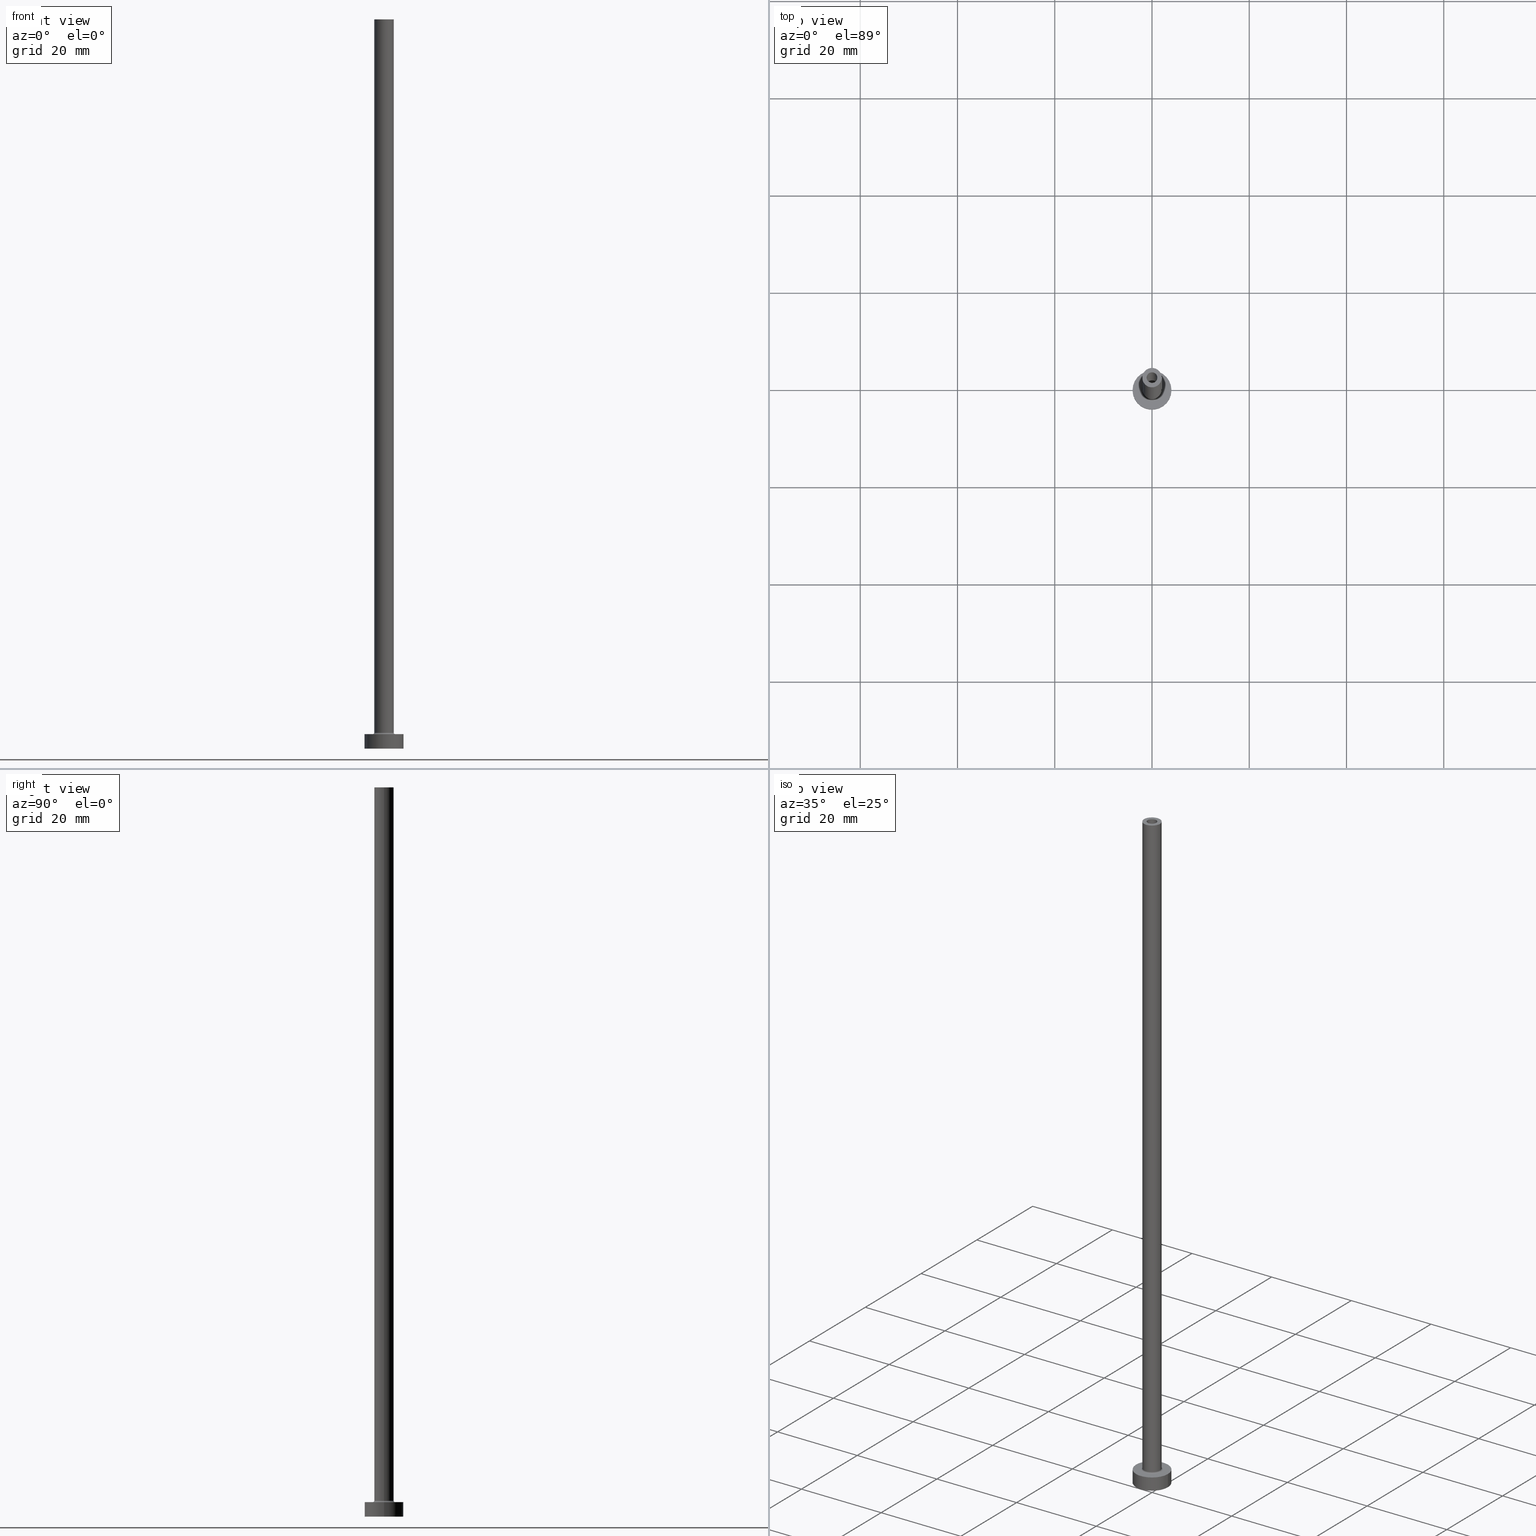
[diagram: canonical four-view strip — front | top / right | iso, engineering-drawing reading convention]
A machine part, canonical four-view strip (front | top / right | iso — engineering-drawing reading convention). The complete STEP part file that produces these views, byte-faithful:
ISO-10303-21;
HEADER;
FILE_DESCRIPTION (( 'STEP AP203' ),
    '1' );
FILE_NAME ('4239.STEP',
    '2023-02-13T12:49:41',
    ( '' ),
    ( '' ),
    'SwSTEP 2.0',
    'SolidWorks 2019',
    '' );
FILE_SCHEMA (( 'CONFIG_CONTROL_DESIGN' ));
ENDSEC;

DATA;
#1 = PLANE ( 'NONE',  #171 ) ;
#2 = DIRECTION ( 'NONE',  ( -1.000000000000000000, 0.000000000000000000, 0.000000000000000000 ) ) ;
#3 = VECTOR ( 'NONE', #306, 1000.000000000000000 ) ;
#4 = LOCAL_TIME ( 13, 49, 41.00000000000000000, #419 ) ;
#5 = FACE_OUTER_BOUND ( 'NONE', #416, .T. ) ;
#6 = DIRECTION ( 'NONE',  ( 0.000000000000000000, 0.000000000000000000, 1.000000000000000000 ) ) ;
#7 = ORIENTED_EDGE ( 'NONE', *, *, #315, .T. ) ;
#8 = EDGE_CURVE ( 'NONE', #157, #304, #250, .T. ) ;
#9 = LINE ( 'NONE', #128, #188 ) ;
#10 = CIRCLE ( 'NONE', #223, 4.000000000000000000 ) ;
#11 = FACE_OUTER_BOUND ( 'NONE', #17, .T. ) ;
#12 = ORIENTED_EDGE ( 'NONE', *, *, #8, .T. ) ;
#13 = EDGE_CURVE ( 'NONE', #157, #78, #144, .T. ) ;
#14 = DIRECTION ( 'NONE',  ( -0.000000000000000000, -0.000000000000000000, -1.000000000000000000 ) ) ;
#15 = ORIENTED_EDGE ( 'NONE', *, *, #294, .F. ) ;
#16 = DIRECTION ( 'NONE',  ( 1.000000000000000000, 0.000000000000000000, 0.000000000000000000 ) ) ;
#17 = EDGE_LOOP ( 'NONE', ( #83, #222 ) ) ;
#18 = AXIS2_PLACEMENT_3D ( 'NONE', #372, #269, #194 ) ;
#19 = ORIENTED_EDGE ( 'NONE', *, *, #116, .F. ) ;
#20 = APPROVAL_DATE_TIME ( #354, #161 ) ;
#21 = EDGE_LOOP ( 'NONE', ( #414, #167 ) ) ;
#22 = EDGE_CURVE ( 'NONE', #124, #54, #309, .T. ) ;
#23 = COORDINATED_UNIVERSAL_TIME_OFFSET ( 1, 0, .AHEAD. ) ;
#24 = FACE_OUTER_BOUND ( 'NONE', #49, .T. ) ;
#25 = CIRCLE ( 'NONE', #195, 2.000000000000000000 ) ;
#26 = DIRECTION ( 'NONE',  ( -1.000000000000000000, 1.224646799147353207E-16, 0.000000000000000000 ) ) ;
#27 = PERSON_AND_ORGANIZATION ( #457, #112 ) ;
#28 = PRODUCT_DEFINITION ( 'NEZN�M�', '', #133, #389 ) ;
#29 = CARTESIAN_POINT ( 'NONE',  ( 0.000000000000000000, 0.000000000000000000, 150.0000000000000000 ) ) ;
#30 = APPROVAL_STATUS ( 'not_yet_approved' ) ;
#31 = DIRECTION ( 'NONE',  ( 1.000000000000000000, 0.000000000000000000, 0.000000000000000000 ) ) ;
#32 = AXIS2_PLACEMENT_3D ( 'NONE', #29, #246, #131 ) ;
#33 = CYLINDRICAL_SURFACE ( 'NONE', #392, 4.000000000000000000 ) ;
#34 = LOCAL_TIME ( 13, 49, 41.00000000000000000, #282 ) ;
#35 = CARTESIAN_POINT ( 'NONE',  ( 0.000000000000000000, 0.000000000000000000, 114.9999999999999858 ) ) ;
#36 = FACE_OUTER_BOUND ( 'NONE', #337, .T. ) ;
#37 = ORIENTED_EDGE ( 'NONE', *, *, #405, .F. ) ;
#38 = FACE_OUTER_BOUND ( 'NONE', #371, .T. ) ;
#39 = AXIS2_PLACEMENT_3D ( 'NONE', #349, #213, #325 ) ;
#40 = EDGE_CURVE ( 'NONE', #198, #124, #215, .T. ) ;
#41 = CC_DESIGN_DATE_AND_TIME_ASSIGNMENT ( #134, #350, ( #302 ) ) ;
#42 = CARTESIAN_POINT ( 'NONE',  ( 1.100000000000000089, 1.347111479062088503E-16, 150.0000000000000000 ) ) ;
#43 = ORIENTED_EDGE ( 'NONE', *, *, #225, .T. ) ;
#44 = CARTESIAN_POINT ( 'NONE',  ( -4.000000000000000000, 0.000000000000000000, 3.000000000000000000 ) ) ;
#45 = DIRECTION ( 'NONE',  ( 0.000000000000000000, 0.000000000000000000, -1.000000000000000000 ) ) ;
#46 = EDGE_LOOP ( 'NONE', ( #450, #347 ) ) ;
#47 = AXIS2_PLACEMENT_3D ( 'NONE', #317, #452, #59 ) ;
#48 =( LENGTH_UNIT ( ) NAMED_UNIT ( * ) SI_UNIT ( .MILLI., .METRE. ) );
#49 = EDGE_LOOP ( 'NONE', ( #88, #345, #339, #268 ) ) ;
#50 = LINE ( 'NONE', #312, #310 ) ;
#51 = ORIENTED_EDGE ( 'NONE', *, *, #344, .T. ) ;
#52 = DIRECTION ( 'NONE',  ( 0.000000000000000000, 0.000000000000000000, -1.000000000000000000 ) ) ;
#53 = PRODUCT_DEFINITION_SHAPE ( 'NONE', 'NONE',  #28 ) ;
#54 = VERTEX_POINT ( 'NONE', #67 ) ;
#55 = CIRCLE ( 'NONE', #18, 1.250000000000000000 ) ;
#56 = PERSON_AND_ORGANIZATION_ROLE ( 'creator' ) ;
#57 = ADVANCED_FACE ( 'NONE', ( #460 ), #298, .F. ) ;
#58 = ORIENTED_EDGE ( 'NONE', *, *, #214, .F. ) ;
#59 = DIRECTION ( 'NONE',  ( 1.000000000000000000, 0.000000000000000000, 0.000000000000000000 ) ) ;
#60 = PERSON_AND_ORGANIZATION_ROLE ( 'creator' ) ;
#61 = DIRECTION ( 'NONE',  ( 0.000000000000000000, 0.000000000000000000, 1.000000000000000000 ) ) ;
#62 = PERSON_AND_ORGANIZATION ( #457, #112 ) ;
#63 = AXIS2_PLACEMENT_3D ( 'NONE', #265, #77, #327 ) ;
#64 = FACE_OUTER_BOUND ( 'NONE', #316, .T. ) ;
#65 = PRODUCT ( '4239', '4239', '', ( #102 ) ) ;
#66 = ORIENTED_EDGE ( 'NONE', *, *, #426, .T. ) ;
#67 = CARTESIAN_POINT ( 'NONE',  ( 4.000000000000000000, 4.898587196589412829E-16, 0.000000000000000000 ) ) ;
#68 = CIRCLE ( 'NONE', #251, 1.100000000000000089 ) ;
#69 = CARTESIAN_POINT ( 'NONE',  ( 0.000000000000000000, 0.000000000000000000, 118.5355339059327093 ) ) ;
#70 = ADVANCED_FACE ( 'NONE', ( #418, #422 ), #321, .F. ) ;
#71 = DIRECTION ( 'NONE',  ( 0.000000000000000000, 0.000000000000000000, 1.000000000000000000 ) ) ;
#72 = CARTESIAN_POINT ( 'NONE',  ( -1.100000000000000089, 0.000000000000000000, 114.9999999999999858 ) ) ;
#73 = EDGE_LOOP ( 'NONE', ( #200, #66, #228, #242 ) ) ;
#74 = CARTESIAN_POINT ( 'NONE',  ( 0.000000000000000000, 0.000000000000000000, 0.000000000000000000 ) ) ;
#75 = AXIS2_PLACEMENT_3D ( 'NONE', #184, #170, #359 ) ;
#76 = CIRCLE ( 'NONE', #425, 4.000000000000000000 ) ;
#77 = DIRECTION ( 'NONE',  ( 0.000000000000000000, 0.000000000000000000, 1.000000000000000000 ) ) ;
#78 = VERTEX_POINT ( 'NONE', #283 ) ;
#79 = CARTESIAN_POINT ( 'NONE',  ( -1.250000000000000000, 0.000000000000000000, 114.9999999999999858 ) ) ;
#80 = ORIENTED_EDGE ( 'NONE', *, *, #314, .F. ) ;
#81 = ADVANCED_FACE ( 'NONE', ( #64 ), #249, .F. ) ;
#82 = DIRECTION ( 'NONE',  ( 0.000000000000000000, 0.000000000000000000, -1.000000000000000000 ) ) ;
#83 = ORIENTED_EDGE ( 'NONE', *, *, #104, .T. ) ;
#84 = CLOSED_SHELL ( 'NONE', ( #358, #245, #57, #168, #453, #126, #446, #180, #91, #181, #278, #219, #70, #81 ) ) ;
#85 = AXIS2_PLACEMENT_3D ( 'NONE', #402, #6, #435 ) ;
#86 = APPROVAL_PERSON_ORGANIZATION ( #62, #161, #210 ) ;
#87 = CARTESIAN_POINT ( 'NONE',  ( 0.000000000000000000, 0.000000000000000000, 150.0000000000000000 ) ) ;
#88 = ORIENTED_EDGE ( 'NONE', *, *, #295, .F. ) ;
#89 = DIRECTION ( 'NONE',  ( -0.000000000000000000, -0.000000000000000000, -1.000000000000000000 ) ) ;
#90 = ORIENTED_EDGE ( 'NONE', *, *, #328, .F. ) ;
#91 = ADVANCED_FACE ( 'NONE', ( #355 ), #135, .T. ) ;
#92 = VERTEX_POINT ( 'NONE', #177 ) ;
#93 = VECTOR ( 'NONE', #14, 1000.000000000000000 ) ;
#94 = CARTESIAN_POINT ( 'NONE',  ( 0.000000000000000000, 0.000000000000000000, 150.0000000000000000 ) ) ;
#95 = SHAPE_DEFINITION_REPRESENTATION ( #53, #207 ) ;
#96 = DIRECTION ( 'NONE',  ( -0.000000000000000000, -0.000000000000000000, -1.000000000000000000 ) ) ;
#97 = DIRECTION ( 'NONE',  ( 0.000000000000000000, 0.000000000000000000, 1.000000000000000000 ) ) ;
#98 = CARTESIAN_POINT ( 'NONE',  ( 0.000000000000000000, 0.000000000000000000, 3.299999999999997158 ) ) ;
#99 = CALENDAR_DATE ( 2023, 13, 2 ) ;
#100 = CIRCLE ( 'NONE', #318, 2.299999999999999822 ) ;
#101 = EDGE_LOOP ( 'NONE', ( #43, #365, #377, #129 ) ) ;
#102 = MECHANICAL_CONTEXT ( 'NONE', #287, 'mechanical' ) ;
#103 = DIRECTION ( 'NONE',  ( 0.000000000000000000, 0.000000000000000000, 1.000000000000000000 ) ) ;
#104 = EDGE_CURVE ( 'NONE', #198, #201, #182, .T. ) ;
#105 = CYLINDRICAL_SURFACE ( 'NONE', #335, 1.250000000000000000 ) ;
#106 = CIRCLE ( 'NONE', #438, 1.250000000000000000 ) ;
#107 = DIRECTION ( 'NONE',  ( 0.000000000000000000, 0.000000000000000000, -1.000000000000000000 ) ) ;
#108 = PLANE ( 'NONE',  #85 ) ;
#109 = DIRECTION ( 'NONE',  ( 1.000000000000000000, 0.000000000000000000, 0.000000000000000000 ) ) ;
#110 = CARTESIAN_POINT ( 'NONE',  ( 0.000000000000000000, 0.000000000000000000, 3.000000000000000000 ) ) ;
#111 = AXIS2_PLACEMENT_3D ( 'NONE', #94, #391, #454 ) ;
#112 = ORGANIZATION ( 'NEUR�EN�', 'NEUR�EN�', '' ) ;
#113 = CC_DESIGN_APPROVAL ( #252, ( #28 ) ) ;
#114 = CARTESIAN_POINT ( 'NONE',  ( -2.000000000000000000, 0.000000000000000000, 150.0000000000000000 ) ) ;
#115 = ORIENTED_EDGE ( 'NONE', *, *, #13, .T. ) ;
#116 = EDGE_CURVE ( 'NONE', #201, #198, #10, .T. ) ;
#117 = DIRECTION ( 'NONE',  ( 1.000000000000000000, 0.000000000000000000, -0.000000000000000000 ) ) ;
#118 = ORIENTED_EDGE ( 'NONE', *, *, #127, .F. ) ;
#119 = DIRECTION ( 'NONE',  ( 0.000000000000000000, 0.000000000000000000, 1.000000000000000000 ) ) ;
#120 = ORIENTED_EDGE ( 'NONE', *, *, #125, .T. ) ;
#121 = AXIS2_PLACEMENT_3D ( 'NONE', #357, #458, #26 ) ;
#122 = AXIS2_PLACEMENT_3D ( 'NONE', #149, #107, #399 ) ;
#123 = CARTESIAN_POINT ( 'NONE',  ( 0.000000000000000000, 0.000000000000000000, 3.000000000000000000 ) ) ;
#124 = VERTEX_POINT ( 'NONE', #280 ) ;
#125 = EDGE_CURVE ( 'NONE', #187, #332, #382, .T. ) ;
#126 = ADVANCED_FACE ( 'NONE', ( #24 ), #33, .T. ) ;
#127 = EDGE_CURVE ( 'NONE', #190, #341, #25, .T. ) ;
#128 = CARTESIAN_POINT ( 'NONE',  ( -1.250000000000000000, 0.000000000000000000, 118.5355339059327093 ) ) ;
#129 = ORIENTED_EDGE ( 'NONE', *, *, #395, .F. ) ;
#130 = APPROVAL_DATE_TIME ( #139, #235 ) ;
#131 = DIRECTION ( 'NONE',  ( -1.000000000000000000, 0.000000000000000000, 0.000000000000000000 ) ) ;
#132 = AXIS2_PLACEMENT_3D ( 'NONE', #148, #146, #109 ) ;
#133 = PRODUCT_DEFINITION_FORMATION_WITH_SPECIFIED_SOURCE ( 'LIBOVOLN�', '', #65, .NOT_KNOWN. ) ;
#134 = DATE_AND_TIME ( #451, #367 ) ;
#135 = CYLINDRICAL_SURFACE ( 'NONE', #32, 2.000000000000000000 ) ;
#136 = DIRECTION ( 'NONE',  ( 1.000000000000000000, 0.000000000000000000, -0.000000000000000000 ) ) ;
#137 = CARTESIAN_POINT ( 'NONE',  ( 0.000000000000000000, 0.000000000000000000, 114.9999999999999858 ) ) ;
#138 = AXIS2_PLACEMENT_3D ( 'NONE', #98, #179, #175 ) ;
#139 = DATE_AND_TIME ( #459, #4 ) ;
#140 = CARTESIAN_POINT ( 'NONE',  ( 0.000000000000000000, 0.000000000000000000, 3.000000000000000000 ) ) ;
#141 = EDGE_CURVE ( 'NONE', #275, #304, #100, .T. ) ;
#142 = DIRECTION ( 'NONE',  ( 0.000000000000000000, 0.000000000000000000, 1.000000000000000000 ) ) ;
#143 = DIRECTION ( 'NONE',  ( -1.000000000000000000, 0.000000000000000000, 0.000000000000000000 ) ) ;
#144 = CIRCLE ( 'NONE', #47, 2.000000000000000000 ) ;
#145 = AXIS2_PLACEMENT_3D ( 'NONE', #388, #209, #331 ) ;
#146 = DIRECTION ( 'NONE',  ( 0.000000000000000000, 0.000000000000000000, 1.000000000000000000 ) ) ;
#147 = CC_DESIGN_APPROVAL ( #161, ( #133 ) ) ;
#148 = CARTESIAN_POINT ( 'NONE',  ( 0.000000000000000000, 0.000000000000000000, 150.0000000000000000 ) ) ;
#149 = CARTESIAN_POINT ( 'NONE',  ( 0.000000000000000000, 0.000000000000000000, 118.5355339059327093 ) ) ;
#150 = ORIENTED_EDGE ( 'NONE', *, *, #360, .F. ) ;
#151 = EDGE_CURVE ( 'NONE', #78, #157, #153, .T. ) ;
#152 = CARTESIAN_POINT ( 'NONE',  ( -2.299999999999999822, 2.816687638038912056E-16, 2.999999999999998668 ) ) ;
#153 = CIRCLE ( 'NONE', #145, 2.000000000000000000 ) ;
#154 = EDGE_CURVE ( 'NONE', #233, #270, #183, .T. ) ;
#155 = CC_DESIGN_PERSON_AND_ORGANIZATION_ASSIGNMENT ( #455, #60, ( #133 ) ) ;
#156 = PLANE ( 'NONE',  #403 ) ;
#157 = VERTEX_POINT ( 'NONE', #185 ) ;
#158 = DIRECTION ( 'NONE',  ( -1.000000000000000000, 0.000000000000000000, 0.000000000000000000 ) ) ;
#159 = EDGE_LOOP ( 'NONE', ( #118, #261, #351, #380 ) ) ;
#160 = CARTESIAN_POINT ( 'NONE',  ( -2.000000000000000000, 0.000000000000000000, 150.0000000000000000 ) ) ;
#161 = APPROVAL ( #348, 'NEUR�EN�' ) ;
#162 = ORIENTED_EDGE ( 'NONE', *, *, #426, .F. ) ;
#163 = CIRCLE ( 'NONE', #417, 1.250000000000000000 ) ;
#164 = DIRECTION ( 'NONE',  ( -0.000000000000000000, -0.000000000000000000, -1.000000000000000000 ) ) ;
#165 = EDGE_LOOP ( 'NONE', ( #205, #313 ) ) ;
#166 = DIRECTION ( 'NONE',  ( 1.000000000000000000, 0.000000000000000000, 0.000000000000000000 ) ) ;
#167 = ORIENTED_EDGE ( 'NONE', *, *, #294, .T. ) ;
#168 = ADVANCED_FACE ( 'NONE', ( #330 ), #288, .T. ) ;
#169 = PERSON_AND_ORGANIZATION_ROLE ( 'design_supplier' ) ;
#170 = DIRECTION ( 'NONE',  ( 0.000000000000000000, 0.000000000000000000, 1.000000000000000000 ) ) ;
#171 = AXIS2_PLACEMENT_3D ( 'NONE', #401, #71, #260 ) ;
#172 = UNCERTAINTY_MEASURE_WITH_UNIT (LENGTH_MEASURE( 1.000000000000000082E-05 ), #48, 'distance_accuracy_value', 'NONE');
#173 = EDGE_CURVE ( 'NONE', #92, #379, #163, .T. ) ;
#174 = CALENDAR_DATE ( 2023, 13, 2 ) ;
#175 = DIRECTION ( 'NONE',  ( 1.000000000000000000, 0.000000000000000000, 0.000000000000000000 ) ) ;
#176 = PERSON_AND_ORGANIZATION ( #457, #112 ) ;
#177 = CARTESIAN_POINT ( 'NONE',  ( 1.250000000000000000, 1.530808498934191571E-16, 114.9999999999999858 ) ) ;
#178 = APPROVAL_ROLE ( '' ) ;
#179 = DIRECTION ( 'NONE',  ( 0.000000000000000000, 0.000000000000000000, 1.000000000000000000 ) ) ;
#180 = ADVANCED_FACE ( 'NONE', ( #329, #36 ), #108, .F. ) ;
#181 = ADVANCED_FACE ( 'NONE', ( #262, #5 ), #1, .T. ) ;
#182 = CIRCLE ( 'NONE', #241, 4.000000000000000000 ) ;
#183 = CIRCLE ( 'NONE', #132, 1.100000000000000089 ) ;
#184 = CARTESIAN_POINT ( 'NONE',  ( 0.000000000000000000, 0.000000000000000000, 0.000000000000000000 ) ) ;
#185 = CARTESIAN_POINT ( 'NONE',  ( -2.000000000000000000, 0.000000000000000000, 3.299999999999997158 ) ) ;
#186 = DIRECTION ( 'NONE',  ( 0.000000000000000000, 0.000000000000000000, 1.000000000000000000 ) ) ;
#187 = VERTEX_POINT ( 'NONE', #72 ) ;
#188 = VECTOR ( 'NONE', #45, 1000.000000000000000 ) ;
#189 = CARTESIAN_POINT ( 'NONE',  ( 1.250000000000000000, 1.530808498934191571E-16, 0.000000000000000000 ) ) ;
#190 = VERTEX_POINT ( 'NONE', #293 ) ;
#191 = CARTESIAN_POINT ( 'NONE',  ( 2.299999999999999822, 0.000000000000000000, 2.999999999999998668 ) ) ;
#192 = FACE_OUTER_BOUND ( 'NONE', #73, .T. ) ;
#193 = EDGE_CURVE ( 'NONE', #277, #211, #106, .T. ) ;
#194 = DIRECTION ( 'NONE',  ( 1.000000000000000000, 0.000000000000000000, 0.000000000000000000 ) ) ;
#195 = AXIS2_PLACEMENT_3D ( 'NONE', #430, #103, #256 ) ;
#196 = ORIENTED_EDGE ( 'NONE', *, *, #22, .F. ) ;
#197 = DIRECTION ( 'NONE',  ( 0.000000000000000000, -1.000000000000000000, 0.000000000000000000 ) ) ;
#198 = VERTEX_POINT ( 'NONE', #44 ) ;
#199 = CARTESIAN_POINT ( 'NONE',  ( 2.000000000000000000, 2.449293598294706414E-16, 150.0000000000000000 ) ) ;
#200 = ORIENTED_EDGE ( 'NONE', *, *, #154, .T. ) ;
#201 = VERTEX_POINT ( 'NONE', #397 ) ;
#202 = AXIS2_PLACEMENT_3D ( 'NONE', #137, #61, #136 ) ;
#203 = AXIS2_PLACEMENT_3D ( 'NONE', #123, #164, #413 ) ;
#204 = PERSON_AND_ORGANIZATION_ROLE ( 'classification_officer' ) ;
#205 = ORIENTED_EDGE ( 'NONE', *, *, #225, .F. ) ;
#206 = DIRECTION ( 'NONE',  ( -0.000000000000000000, -0.000000000000000000, -1.000000000000000000 ) ) ;
#207 = ADVANCED_BREP_SHAPE_REPRESENTATION ( '4239', ( #322, #361 ), #326 ) ;
#208 = PERSON_AND_ORGANIZATION ( #457, #112 ) ;
#209 = DIRECTION ( 'NONE',  ( 0.000000000000000000, 0.000000000000000000, 1.000000000000000000 ) ) ;
#210 = APPROVAL_ROLE ( '' ) ;
#211 = VERTEX_POINT ( 'NONE', #362 ) ;
#212 = COORDINATED_UNIVERSAL_TIME_OFFSET ( 1, 0, .AHEAD. ) ;
#213 = DIRECTION ( 'NONE',  ( 0.000000000000000000, 0.000000000000000000, 1.000000000000000000 ) ) ;
#214 = EDGE_CURVE ( 'NONE', #341, #190, #216, .T. ) ;
#215 = LINE ( 'NONE', #456, #343 ) ;
#216 = CIRCLE ( 'NONE', #264, 2.000000000000000000 ) ;
#217 = LOCAL_TIME ( 13, 49, 41.00000000000000000, #346 ) ;
#218 = CARTESIAN_POINT ( 'NONE',  ( 0.000000000000000000, 0.000000000000000000, 114.9999999999999858 ) ) ;
#219 = ADVANCED_FACE ( 'NONE', ( #38 ), #105, .F. ) ;
#220 = FACE_OUTER_BOUND ( 'NONE', #101, .T. ) ;
#221 = DIRECTION ( 'NONE',  ( 1.000000000000000000, 0.000000000000000000, 0.000000000000000000 ) ) ;
#222 = ORIENTED_EDGE ( 'NONE', *, *, #116, .T. ) ;
#223 = AXIS2_PLACEMENT_3D ( 'NONE', #386, #254, #394 ) ;
#224 = DIRECTION ( 'NONE',  ( -0.000000000000000000, -0.000000000000000000, -1.000000000000000000 ) ) ;
#225 = EDGE_CURVE ( 'NONE', #379, #92, #352, .T. ) ;
#226 = PRODUCT_RELATED_PRODUCT_CATEGORY ( 'detail', '', ( #65 ) ) ;
#227 = DIRECTION ( 'NONE',  ( 0.000000000000000000, 0.000000000000000000, -1.000000000000000000 ) ) ;
#228 = ORIENTED_EDGE ( 'NONE', *, *, #125, .F. ) ;
#229 = CARTESIAN_POINT ( 'NONE',  ( 0.000000000000000000, 0.000000000000000000, 150.0000000000000000 ) ) ;
#230 = EDGE_LOOP ( 'NONE', ( #19, #237, #307, #311 ) ) ;
#231 = CYLINDRICAL_SURFACE ( 'NONE', #284, 1.100000000000000089 ) ;
#232 = AXIS2_PLACEMENT_3D ( 'NONE', #363, #186, #434 ) ;
#233 = VERTEX_POINT ( 'NONE', #368 ) ;
#234 = CC_DESIGN_SECURITY_CLASSIFICATION ( #302, ( #133 ) ) ;
#235 = APPROVAL ( #30, 'NEUR�EN�' ) ;
#236 = LINE ( 'NONE', #199, #3 ) ;
#237 = ORIENTED_EDGE ( 'NONE', *, *, #295, .T. ) ;
#238 = CARTESIAN_POINT ( 'NONE',  ( 0.000000000000000000, 0.000000000000000000, 0.000000000000000000 ) ) ;
#239 = ORIENTED_EDGE ( 'NONE', *, *, #173, .T. ) ;
#240 = CARTESIAN_POINT ( 'NONE',  ( 2.299999999999999822, 0.000000000000000000, 3.299999999999997158 ) ) ;
#241 = AXIS2_PLACEMENT_3D ( 'NONE', #324, #424, #31 ) ;
#242 = ORIENTED_EDGE ( 'NONE', *, *, #315, .F. ) ;
#243 = AXIS2_PLACEMENT_3D ( 'NONE', #240, #197, #443 ) ;
#244 = CARTESIAN_POINT ( 'NONE',  ( 0.000000000000000000, 0.000000000000000000, 0.000000000000000000 ) ) ;
#245 = ADVANCED_FACE ( 'NONE', ( #220 ), #259, .F. ) ;
#246 = DIRECTION ( 'NONE',  ( -0.000000000000000000, -0.000000000000000000, -1.000000000000000000 ) ) ;
#247 = DIRECTION ( 'NONE',  ( 1.000000000000000000, 0.000000000000000000, 0.000000000000000000 ) ) ;
#248 = PERSON_AND_ORGANIZATION ( #457, #112 ) ;
#249 = CYLINDRICAL_SURFACE ( 'NONE', #111, 1.100000000000000089 ) ;
#250 = CIRCLE ( 'NONE', #121, 0.2999999999999999334 ) ;
#251 = AXIS2_PLACEMENT_3D ( 'NONE', #229, #448, #381 ) ;
#252 = APPROVAL ( #319, 'NEUR�EN�' ) ;
#253 = DATE_TIME_ROLE ( 'creation_date' ) ;
#254 = DIRECTION ( 'NONE',  ( 0.000000000000000000, 0.000000000000000000, 1.000000000000000000 ) ) ;
#255 = PERSON_AND_ORGANIZATION_ROLE ( 'design_owner' ) ;
#256 = DIRECTION ( 'NONE',  ( 1.000000000000000000, 0.000000000000000000, 0.000000000000000000 ) ) ;
#257 = ORIENTED_EDGE ( 'NONE', *, *, #151, .F. ) ;
#258 = APPROVAL_PERSON_ORGANIZATION ( #248, #252, #387 ) ;
#259 = CYLINDRICAL_SURFACE ( 'NONE', #122, 1.250000000000000000 ) ;
#260 = DIRECTION ( 'NONE',  ( 1.000000000000000000, 0.000000000000000000, -0.000000000000000000 ) ) ;
#261 = ORIENTED_EDGE ( 'NONE', *, *, #360, .T. ) ;
#262 = FACE_BOUND ( 'NONE', #281, .T. ) ;
#263 = EDGE_CURVE ( 'NONE', #332, #187, #410, .T. ) ;
#264 = AXIS2_PLACEMENT_3D ( 'NONE', #364, #142, #221 ) ;
#265 = CARTESIAN_POINT ( 'NONE',  ( 0.000000000000000000, 0.000000000000000000, 3.299999999999997158 ) ) ;
#266 = EDGE_LOOP ( 'NONE', ( #120, #383 ) ) ;
#267 = LINE ( 'NONE', #439, #447 ) ;
#268 = ORIENTED_EDGE ( 'NONE', *, *, #22, .T. ) ;
#269 = DIRECTION ( 'NONE',  ( -0.000000000000000000, -0.000000000000000000, -1.000000000000000000 ) ) ;
#270 = VERTEX_POINT ( 'NONE', #42 ) ;
#271 = LINE ( 'NONE', #376, #398 ) ;
#272 = CIRCLE ( 'NONE', #366, 2.299999999999999822 ) ;
#273 = ORIENTED_EDGE ( 'NONE', *, *, #13, .F. ) ;
#274 = LINE ( 'NONE', #301, #299 ) ;
#275 = VERTEX_POINT ( 'NONE', #191 ) ;
#276 =( NAMED_UNIT ( * ) SI_UNIT ( $, .STERADIAN. ) SOLID_ANGLE_UNIT ( ) );
#277 = VERTEX_POINT ( 'NONE', #189 ) ;
#278 = ADVANCED_FACE ( 'NONE', ( #296 ), #290, .F. ) ;
#279 = CIRCLE ( 'NONE', #243, 0.2999999999999999334 ) ;
#280 = CARTESIAN_POINT ( 'NONE',  ( -4.000000000000000000, 0.000000000000000000, 0.000000000000000000 ) ) ;
#281 = EDGE_LOOP ( 'NONE', ( #406, #37 ) ) ;
#282 = COORDINATED_UNIVERSAL_TIME_OFFSET ( 1, 0, .AHEAD. ) ;
#283 = CARTESIAN_POINT ( 'NONE',  ( 2.000000000000000000, 2.449293598294706414E-16, 3.299999999999997158 ) ) ;
#284 = AXIS2_PLACEMENT_3D ( 'NONE', #87, #82, #158 ) ;
#285 = APPLICATION_PROTOCOL_DEFINITION ( 'international standard', 'config_control_design', 1994, #287 ) ;
#286 = DIRECTION ( 'NONE',  ( -0.000000000000000000, -0.000000000000000000, -1.000000000000000000 ) ) ;
#287 = APPLICATION_CONTEXT ( 'configuration controlled 3d designs of mechanical parts and assemblies' ) ;
#288 = CYLINDRICAL_SURFACE ( 'NONE', #300, 2.000000000000000000 ) ;
#289 = DIRECTION ( 'NONE',  ( 0.000000000000000000, 0.000000000000000000, 1.000000000000000000 ) ) ;
#290 = TOROIDAL_SURFACE ( 'NONE', #63, 2.299999999999999822, 0.2999999999999999889 ) ;
#291 = DIRECTION ( 'NONE',  ( 1.000000000000000000, 0.000000000000000000, 0.000000000000000000 ) ) ;
#292 = ORIENTED_EDGE ( 'NONE', *, *, #141, .F. ) ;
#293 = CARTESIAN_POINT ( 'NONE',  ( 2.000000000000000000, 2.449293598294706414E-16, 150.0000000000000000 ) ) ;
#294 = EDGE_CURVE ( 'NONE', #304, #275, #272, .T. ) ;
#295 = EDGE_CURVE ( 'NONE', #201, #54, #274, .T. ) ;
#296 = FACE_OUTER_BOUND ( 'NONE', #334, .T. ) ;
#297 = ORIENTED_EDGE ( 'NONE', *, *, #405, .T. ) ;
#298 = TOROIDAL_SURFACE ( 'NONE', #138, 2.299999999999999822, 0.2999999999999999889 ) ;
#299 = VECTOR ( 'NONE', #89, 1000.000000000000000 ) ;
#300 = AXIS2_PLACEMENT_3D ( 'NONE', #432, #370, #2 ) ;
#301 = CARTESIAN_POINT ( 'NONE',  ( 4.000000000000000000, 4.898587196589412829E-16, 3.000000000000000000 ) ) ;
#302 = SECURITY_CLASSIFICATION ( '', '', #393 ) ;
#303 = CARTESIAN_POINT ( 'NONE',  ( 0.000000000000000000, 0.000000000000000000, 3.000000000000000000 ) ) ;
#304 = VERTEX_POINT ( 'NONE', #152 ) ;
#305 = CC_DESIGN_PERSON_AND_ORGANIZATION_ASSIGNMENT ( #176, #169, ( #133 ) ) ;
#306 = DIRECTION ( 'NONE',  ( -0.000000000000000000, -0.000000000000000000, -1.000000000000000000 ) ) ;
#307 = ORIENTED_EDGE ( 'NONE', *, *, #428, .T. ) ;
#308 = FACE_OUTER_BOUND ( 'NONE', #230, .T. ) ;
#309 = CIRCLE ( 'NONE', #75, 4.000000000000000000 ) ;
#310 = VECTOR ( 'NONE', #378, 1000.000000000000000 ) ;
#311 = ORIENTED_EDGE ( 'NONE', *, *, #40, .F. ) ;
#312 = CARTESIAN_POINT ( 'NONE',  ( 1.100000000000000089, 1.347111479062088503E-16, 150.0000000000000000 ) ) ;
#313 = ORIENTED_EDGE ( 'NONE', *, *, #173, .F. ) ;
#314 = EDGE_CURVE ( 'NONE', #78, #275, #279, .T. ) ;
#315 = EDGE_CURVE ( 'NONE', #233, #187, #271, .T. ) ;
#316 = EDGE_LOOP ( 'NONE', ( #162, #297, #7, #373 ) ) ;
#317 = CARTESIAN_POINT ( 'NONE',  ( 0.000000000000000000, 0.000000000000000000, 3.299999999999997158 ) ) ;
#318 = AXIS2_PLACEMENT_3D ( 'NONE', #396, #96, #247 ) ;
#319 = APPROVAL_STATUS ( 'not_yet_approved' ) ;
#320 = CC_DESIGN_PERSON_AND_ORGANIZATION_ASSIGNMENT ( #323, #204, ( #302 ) ) ;
#321 = PLANE ( 'NONE',  #202 ) ;
#322 = MANIFOLD_SOLID_BREP ( 'Odebrat vysunut�m4', #84 ) ;
#323 = PERSON_AND_ORGANIZATION ( #457, #112 ) ;
#324 = CARTESIAN_POINT ( 'NONE',  ( 0.000000000000000000, 0.000000000000000000, 3.000000000000000000 ) ) ;
#325 = DIRECTION ( 'NONE',  ( 1.000000000000000000, 0.000000000000000000, 0.000000000000000000 ) ) ;
#326 =( GEOMETRIC_REPRESENTATION_CONTEXT ( 3 ) GLOBAL_UNCERTAINTY_ASSIGNED_CONTEXT ( ( #172 ) ) GLOBAL_UNIT_ASSIGNED_CONTEXT ( ( #48, #342, #276 ) ) REPRESENTATION_CONTEXT ( 'NONE', 'WORKASPACE' ) );
#327 = DIRECTION ( 'NONE',  ( 1.000000000000000000, 0.000000000000000000, 0.000000000000000000 ) ) ;
#328 = EDGE_CURVE ( 'NONE', #92, #277, #267, .T. ) ;
#329 = FACE_BOUND ( 'NONE', #46, .T. ) ;
#330 = FACE_OUTER_BOUND ( 'NONE', #159, .T. ) ;
#331 = DIRECTION ( 'NONE',  ( 1.000000000000000000, 0.000000000000000000, 0.000000000000000000 ) ) ;
#332 = VERTEX_POINT ( 'NONE', #338 ) ;
#333 = DIRECTION ( 'NONE',  ( 1.000000000000000000, 0.000000000000000000, 0.000000000000000000 ) ) ;
#334 = EDGE_LOOP ( 'NONE', ( #440, #257, #369, #15 ) ) ;
#335 = AXIS2_PLACEMENT_3D ( 'NONE', #69, #227, #143 ) ;
#336 = FACE_BOUND ( 'NONE', #21, .T. ) ;
#337 = EDGE_LOOP ( 'NONE', ( #196, #445 ) ) ;
#338 = CARTESIAN_POINT ( 'NONE',  ( 1.100000000000000089, 1.347111479062088503E-16, 114.9999999999999858 ) ) ;
#339 = ORIENTED_EDGE ( 'NONE', *, *, #40, .T. ) ;
#340 = DIRECTION ( 'NONE',  ( 1.000000000000000000, 0.000000000000000000, 0.000000000000000000 ) ) ;
#341 = VERTEX_POINT ( 'NONE', #114 ) ;
#342 =( NAMED_UNIT ( * ) PLANE_ANGLE_UNIT ( ) SI_UNIT ( $, .RADIAN. ) );
#343 = VECTOR ( 'NONE', #206, 1000.000000000000000 ) ;
#344 = EDGE_CURVE ( 'NONE', #341, #157, #407, .T. ) ;
#345 = ORIENTED_EDGE ( 'NONE', *, *, #104, .F. ) ;
#346 = COORDINATED_UNIVERSAL_TIME_OFFSET ( 1, 0, .AHEAD. ) ;
#347 = ORIENTED_EDGE ( 'NONE', *, *, #193, .F. ) ;
#348 = APPROVAL_STATUS ( 'not_yet_approved' ) ;
#349 = CARTESIAN_POINT ( 'NONE',  ( 0.000000000000000000, 0.000000000000000000, 114.9999999999999858 ) ) ;
#350 = DATE_TIME_ROLE ( 'classification_date' ) ;
#351 = ORIENTED_EDGE ( 'NONE', *, *, #151, .T. ) ;
#352 = CIRCLE ( 'NONE', #374, 1.250000000000000000 ) ;
#353 = LOCAL_TIME ( 13, 49, 41.00000000000000000, #23 ) ;
#354 = DATE_AND_TIME ( #99, #353 ) ;
#355 = FACE_OUTER_BOUND ( 'NONE', #442, .T. ) ;
#356 = PERSON_AND_ORGANIZATION ( #457, #112 ) ;
#357 = CARTESIAN_POINT ( 'NONE',  ( -2.299999999999999822, 2.816687638038912056E-16, 3.299999999999997158 ) ) ;
#358 = ADVANCED_FACE ( 'NONE', ( #192 ), #231, .F. ) ;
#359 = DIRECTION ( 'NONE',  ( 1.000000000000000000, 0.000000000000000000, 0.000000000000000000 ) ) ;
#360 = EDGE_CURVE ( 'NONE', #190, #78, #236, .T. ) ;
#361 = AXIS2_PLACEMENT_3D ( 'NONE', #244, #97, #166 ) ;
#362 = CARTESIAN_POINT ( 'NONE',  ( -1.250000000000000000, 0.000000000000000000, 0.000000000000000000 ) ) ;
#363 = CARTESIAN_POINT ( 'NONE',  ( 0.000000000000000000, 0.000000000000000000, 114.9999999999999858 ) ) ;
#364 = CARTESIAN_POINT ( 'NONE',  ( 0.000000000000000000, 0.000000000000000000, 150.0000000000000000 ) ) ;
#365 = ORIENTED_EDGE ( 'NONE', *, *, #328, .T. ) ;
#366 = AXIS2_PLACEMENT_3D ( 'NONE', #110, #461, #16 ) ;
#367 = LOCAL_TIME ( 13, 49, 41.00000000000000000, #212 ) ;
#368 = CARTESIAN_POINT ( 'NONE',  ( -1.100000000000000089, 0.000000000000000000, 150.0000000000000000 ) ) ;
#369 = ORIENTED_EDGE ( 'NONE', *, *, #314, .T. ) ;
#370 = DIRECTION ( 'NONE',  ( -0.000000000000000000, -0.000000000000000000, -1.000000000000000000 ) ) ;
#371 = EDGE_LOOP ( 'NONE', ( #90, #239, #408, #449 ) ) ;
#372 = CARTESIAN_POINT ( 'NONE',  ( 0.000000000000000000, 0.000000000000000000, 0.000000000000000000 ) ) ;
#373 = ORIENTED_EDGE ( 'NONE', *, *, #263, .F. ) ;
#374 = AXIS2_PLACEMENT_3D ( 'NONE', #35, #289, #433 ) ;
#375 = CC_DESIGN_APPROVAL ( #235, ( #302 ) ) ;
#376 = CARTESIAN_POINT ( 'NONE',  ( -1.100000000000000089, 0.000000000000000000, 150.0000000000000000 ) ) ;
#377 = ORIENTED_EDGE ( 'NONE', *, *, #193, .T. ) ;
#378 = DIRECTION ( 'NONE',  ( 0.000000000000000000, 0.000000000000000000, -1.000000000000000000 ) ) ;
#379 = VERTEX_POINT ( 'NONE', #79 ) ;
#380 = ORIENTED_EDGE ( 'NONE', *, *, #344, .F. ) ;
#381 = DIRECTION ( 'NONE',  ( 1.000000000000000000, 0.000000000000000000, 0.000000000000000000 ) ) ;
#382 = CIRCLE ( 'NONE', #39, 1.100000000000000089 ) ;
#383 = ORIENTED_EDGE ( 'NONE', *, *, #263, .T. ) ;
#384 = APPROVAL_PERSON_ORGANIZATION ( #356, #235, #178 ) ;
#385 = DATE_AND_TIME ( #174, #217 ) ;
#386 = CARTESIAN_POINT ( 'NONE',  ( 0.000000000000000000, 0.000000000000000000, 3.000000000000000000 ) ) ;
#387 = APPROVAL_ROLE ( '' ) ;
#388 = CARTESIAN_POINT ( 'NONE',  ( 0.000000000000000000, 0.000000000000000000, 3.299999999999997158 ) ) ;
#389 = DESIGN_CONTEXT ( 'detailed design', #431, 'design' ) ;
#390 = APPROVAL_DATE_TIME ( #423, #252 ) ;
#391 = DIRECTION ( 'NONE',  ( 0.000000000000000000, 0.000000000000000000, -1.000000000000000000 ) ) ;
#392 = AXIS2_PLACEMENT_3D ( 'NONE', #140, #286, #420 ) ;
#393 = SECURITY_CLASSIFICATION_LEVEL ( 'unclassified' ) ;
#394 = DIRECTION ( 'NONE',  ( 1.000000000000000000, 0.000000000000000000, 0.000000000000000000 ) ) ;
#395 = EDGE_CURVE ( 'NONE', #379, #211, #9, .T. ) ;
#396 = CARTESIAN_POINT ( 'NONE',  ( 0.000000000000000000, 0.000000000000000000, 3.000000000000000000 ) ) ;
#397 = CARTESIAN_POINT ( 'NONE',  ( 4.000000000000000000, 4.898587196589412829E-16, 3.000000000000000000 ) ) ;
#398 = VECTOR ( 'NONE', #52, 1000.000000000000000 ) ;
#399 = DIRECTION ( 'NONE',  ( -1.000000000000000000, 0.000000000000000000, 0.000000000000000000 ) ) ;
#400 = CC_DESIGN_PERSON_AND_ORGANIZATION_ASSIGNMENT ( #208, #56, ( #28 ) ) ;
#401 = CARTESIAN_POINT ( 'NONE',  ( 0.000000000000000000, 0.000000000000000000, 150.0000000000000000 ) ) ;
#402 = CARTESIAN_POINT ( 'NONE',  ( 0.000000000000000000, 0.000000000000000000, 0.000000000000000000 ) ) ;
#403 = AXIS2_PLACEMENT_3D ( 'NONE', #303, #441, #117 ) ;
#404 = DIRECTION ( 'NONE',  ( 0.000000000000000000, 0.000000000000000000, 1.000000000000000000 ) ) ;
#405 = EDGE_CURVE ( 'NONE', #270, #233, #68, .T. ) ;
#406 = ORIENTED_EDGE ( 'NONE', *, *, #154, .F. ) ;
#407 = LINE ( 'NONE', #160, #93 ) ;
#408 = ORIENTED_EDGE ( 'NONE', *, *, #395, .T. ) ;
#409 = ORIENTED_EDGE ( 'NONE', *, *, #214, .T. ) ;
#410 = CIRCLE ( 'NONE', #232, 1.100000000000000089 ) ;
#411 = DIRECTION ( 'NONE',  ( 0.000000000000000000, 0.000000000000000000, -1.000000000000000000 ) ) ;
#412 = EDGE_LOOP ( 'NONE', ( #273, #12, #292, #80 ) ) ;
#413 = DIRECTION ( 'NONE',  ( -1.000000000000000000, 0.000000000000000000, 0.000000000000000000 ) ) ;
#414 = ORIENTED_EDGE ( 'NONE', *, *, #141, .T. ) ;
#415 = CYLINDRICAL_SURFACE ( 'NONE', #203, 4.000000000000000000 ) ;
#416 = EDGE_LOOP ( 'NONE', ( #409, #436 ) ) ;
#417 = AXIS2_PLACEMENT_3D ( 'NONE', #218, #404, #333 ) ;
#418 = FACE_BOUND ( 'NONE', #266, .T. ) ;
#419 = COORDINATED_UNIVERSAL_TIME_OFFSET ( 1, 0, .AHEAD. ) ;
#420 = DIRECTION ( 'NONE',  ( -1.000000000000000000, 0.000000000000000000, 0.000000000000000000 ) ) ;
#421 = CALENDAR_DATE ( 2023, 13, 2 ) ;
#422 = FACE_OUTER_BOUND ( 'NONE', #165, .T. ) ;
#423 = DATE_AND_TIME ( #421, #34 ) ;
#424 = DIRECTION ( 'NONE',  ( 0.000000000000000000, 0.000000000000000000, 1.000000000000000000 ) ) ;
#425 = AXIS2_PLACEMENT_3D ( 'NONE', #238, #119, #340 ) ;
#426 = EDGE_CURVE ( 'NONE', #270, #332, #50, .T. ) ;
#427 = CC_DESIGN_PERSON_AND_ORGANIZATION_ASSIGNMENT ( #27, #255, ( #65 ) ) ;
#428 = EDGE_CURVE ( 'NONE', #54, #124, #76, .T. ) ;
#429 = APPLICATION_PROTOCOL_DEFINITION ( 'international standard', 'config_control_design', 1994, #431 ) ;
#430 = CARTESIAN_POINT ( 'NONE',  ( 0.000000000000000000, 0.000000000000000000, 150.0000000000000000 ) ) ;
#431 = APPLICATION_CONTEXT ( 'configuration controlled 3d designs of mechanical parts and assemblies' ) ;
#432 = CARTESIAN_POINT ( 'NONE',  ( 0.000000000000000000, 0.000000000000000000, 150.0000000000000000 ) ) ;
#433 = DIRECTION ( 'NONE',  ( 1.000000000000000000, 0.000000000000000000, 0.000000000000000000 ) ) ;
#434 = DIRECTION ( 'NONE',  ( 1.000000000000000000, 0.000000000000000000, 0.000000000000000000 ) ) ;
#435 = DIRECTION ( 'NONE',  ( 1.000000000000000000, 0.000000000000000000, -0.000000000000000000 ) ) ;
#436 = ORIENTED_EDGE ( 'NONE', *, *, #127, .T. ) ;
#437 = EDGE_CURVE ( 'NONE', #211, #277, #55, .T. ) ;
#438 = AXIS2_PLACEMENT_3D ( 'NONE', #74, #224, #291 ) ;
#439 = CARTESIAN_POINT ( 'NONE',  ( 1.250000000000000000, 1.530808498934191571E-16, 118.5355339059327093 ) ) ;
#440 = ORIENTED_EDGE ( 'NONE', *, *, #8, .F. ) ;
#441 = DIRECTION ( 'NONE',  ( 0.000000000000000000, 0.000000000000000000, 1.000000000000000000 ) ) ;
#442 = EDGE_LOOP ( 'NONE', ( #150, #58, #51, #115 ) ) ;
#443 = DIRECTION ( 'NONE',  ( 0.000000000000000000, 0.000000000000000000, -1.000000000000000000 ) ) ;
#444 = CC_DESIGN_DATE_AND_TIME_ASSIGNMENT ( #385, #253, ( #28 ) ) ;
#445 = ORIENTED_EDGE ( 'NONE', *, *, #428, .F. ) ;
#446 = ADVANCED_FACE ( 'NONE', ( #336, #11 ), #156, .T. ) ;
#447 = VECTOR ( 'NONE', #411, 1000.000000000000000 ) ;
#448 = DIRECTION ( 'NONE',  ( 0.000000000000000000, 0.000000000000000000, 1.000000000000000000 ) ) ;
#449 = ORIENTED_EDGE ( 'NONE', *, *, #437, .T. ) ;
#450 = ORIENTED_EDGE ( 'NONE', *, *, #437, .F. ) ;
#451 = CALENDAR_DATE ( 2023, 13, 2 ) ;
#452 = DIRECTION ( 'NONE',  ( 0.000000000000000000, 0.000000000000000000, 1.000000000000000000 ) ) ;
#453 = ADVANCED_FACE ( 'NONE', ( #308 ), #415, .T. ) ;
#454 = DIRECTION ( 'NONE',  ( -1.000000000000000000, 0.000000000000000000, 0.000000000000000000 ) ) ;
#455 = PERSON_AND_ORGANIZATION ( #457, #112 ) ;
#456 = CARTESIAN_POINT ( 'NONE',  ( -4.000000000000000000, 0.000000000000000000, 3.000000000000000000 ) ) ;
#457 = PERSON ( 'NEUR�EN�', 'NEUR�EN�', 'NEUR�EN�', ('NEUR�EN�'), ('NEUR�EN�'), ('NEUR�EN�') ) ;
#458 = DIRECTION ( 'NONE',  ( 1.224646799147353207E-16, 1.000000000000000000, -0.000000000000000000 ) ) ;
#459 = CALENDAR_DATE ( 2023, 13, 2 ) ;
#460 = FACE_OUTER_BOUND ( 'NONE', #412, .T. ) ;
#461 = DIRECTION ( 'NONE',  ( -0.000000000000000000, -0.000000000000000000, -1.000000000000000000 ) ) ;
ENDSEC;
END-ISO-10303-21;
